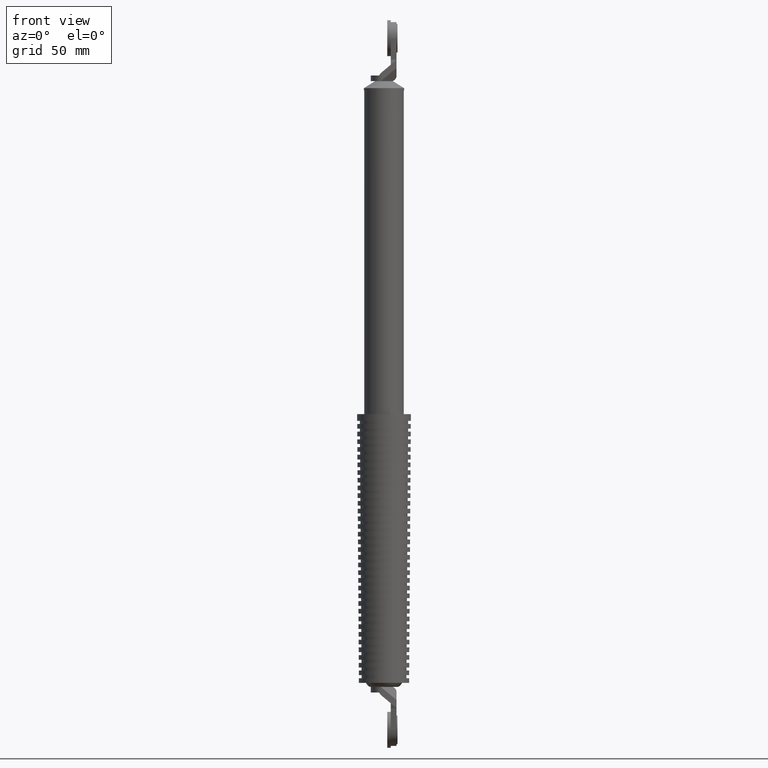
[diagram: clean part render]
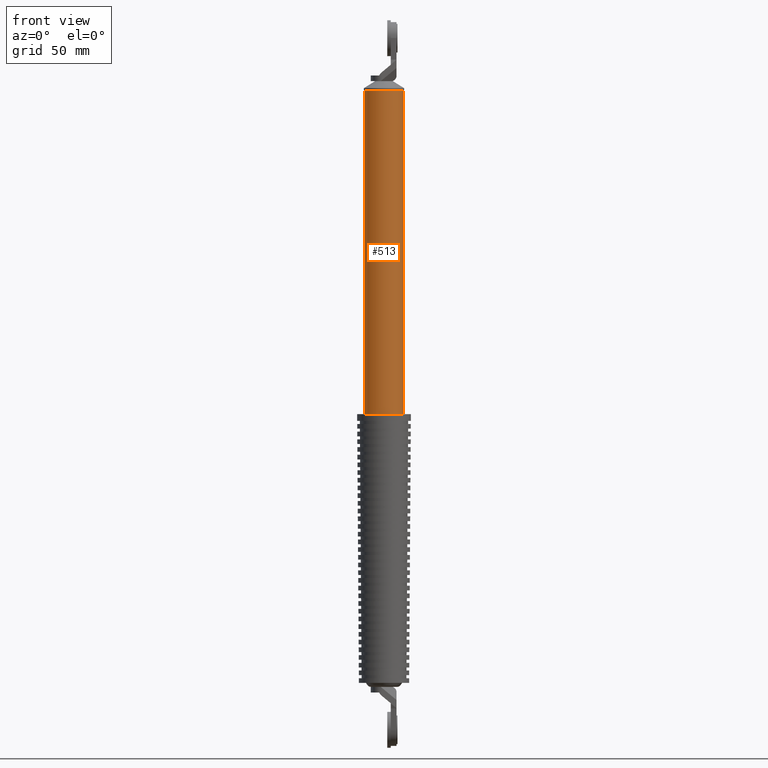
[diagram: same view with one face highlighted and labeled with its STEP entity id]
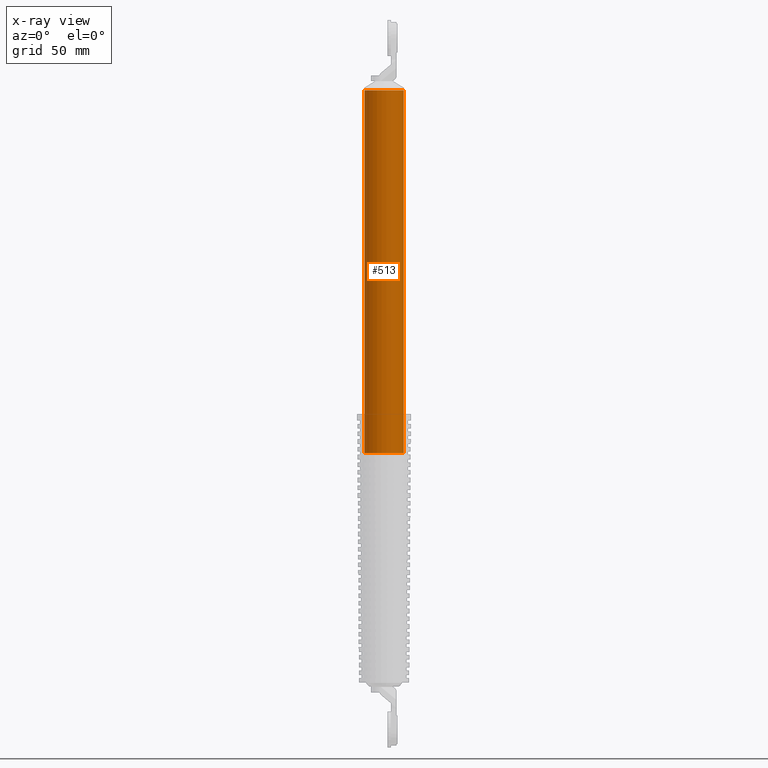
[diagram: x-ray of the same camera — body ghosted, the highlighted face saturated]
A machine part, front view. The second image highlights one B-rep face of the part: STEP entity #513.
The next image is the same camera in x-ray: the body ghosted, the highlighted face saturated — about 0% of this face is hidden behind the body in this view.
In plain terms, the highlighted cylindrical surface (edge-blend (fillet) strip) has radius 11 mm, axis along (0, 0, 1).
Its self-contained STEP definition (entity closure, byte-faithful):
#513=ADVANCED_FACE('',(#3355),#3354,.T.);
#3354=CYLINDRICAL_SURFACE('',#6181,1.10000000000E+001);
#3355=FACE_OUTER_BOUND('',#6182,.T.);
#6178=CARTESIAN_POINT('',(0.00000000000E+000,0.00000000000E+000,0.00000000000E+000));
#6179=DIRECTION('',(-0.00000000000E+000,-0.00000000000E+000,1.00000000000E+000));
#6180=DIRECTION('',(1.00000000000E+000,0.00000000000E+000,0.00000000000E+000));
#6181=AXIS2_PLACEMENT_3D('',#6178,#6179,#6180);
#6182=EDGE_LOOP('',(#7629,#7630,#7631,#7632));
#7629=ORIENTED_EDGE('',*,*,#8387,.F.);
#7630=ORIENTED_EDGE('',*,*,#8384,.T.);
#7631=ORIENTED_EDGE('',*,*,#8349,.T.);
#7632=ORIENTED_EDGE('',*,*,#8386,.F.);
#8349=EDGE_CURVE('',#12011,#12012,#12013,.T.);
#8384=EDGE_CURVE('',#12240,#12011,#12241,.T.);
#8386=EDGE_CURVE('',#12247,#12012,#12254,.T.);
#8387=EDGE_CURVE('',#12240,#12247,#12260,.T.);
#12011=VERTEX_POINT('',#14960);
#12012=VERTEX_POINT('',#14961);
#12013=CIRCLE('',#14965,1.10000000000E+001);
#12240=VERTEX_POINT('',#15101);
#12241=(BOUNDED_CURVE() B_SPLINE_CURVE(1,(#15102,#15103),.UNSPECIFIED.,.F.,.F.) B_SPLINE_CURVE_WITH_KNOTS((2,2),(4.49640316890E-002,9.55035968134E-001),.UNSPECIFIED.) CURVE() GEOMETRIC_REPRESENTATION_ITEM() RATIONAL_B_SPLINE_CURVE((1.00000000000E+000,1.00000000000E+000)) REPRESENTATION_ITEM('') );
#12247=VERTEX_POINT('',#15104);
#12254=(BOUNDED_CURVE() B_SPLINE_CURVE(1,(#15109,#15110),.UNSPECIFIED.,.F.,.F.) B_SPLINE_CURVE_WITH_KNOTS((2,2),(4.49640318096E-002,9.55035968190E-001),.UNSPECIFIED.) CURVE() GEOMETRIC_REPRESENTATION_ITEM() RATIONAL_B_SPLINE_CURVE((7.50000000000E-001,7.50000000000E-001)) REPRESENTATION_ITEM('') );
#12260=CIRCLE('',#15114,1.10000000000E+001);
#14960=CARTESIAN_POINT('',(1.10000000000E+001,5.92118946467E-016,2.23899985000E+002));
#14961=CARTESIAN_POINT('',(-1.10000000000E+001,0.00000000000E+000,2.23899985000E+002));
#14962=CARTESIAN_POINT('',(0.00000000000E+000,0.00000000000E+000,2.23899985000E+002));
#14963=DIRECTION('',(-0.00000000000E+000,0.00000000000E+000,-1.00000000000E+000));
#14964=DIRECTION('',(-1.00000000000E+000,-1.22460635382E-016,0.00000000000E+000));
#14965=AXIS2_PLACEMENT_3D('',#14962,#14963,#14964);
#15101=CARTESIAN_POINT('',(1.10000000000E+001,5.92118946467E-016,2.15000000000E+001));
#15102=CARTESIAN_POINT('',(1.10000000000E+001,0.00000000000E+000,2.14999999732E+001));
#15103=CARTESIAN_POINT('',(1.10000000000E+001,0.00000000000E+000,2.23899984987E+002));
#15104=CARTESIAN_POINT('',(-1.10000000000E+001,0.00000000000E+000,2.15000000000E+001));
#15109=CARTESIAN_POINT('',(-1.10000000000E+001,0.00000000000E+000,2.15000000000E+001));
#15110=CARTESIAN_POINT('',(-1.10000000000E+001,0.00000000000E+000,2.23899985000E+002));
#15111=CARTESIAN_POINT('',(0.00000000000E+000,0.00000000000E+000,2.15000000000E+001));
#15112=DIRECTION('',(-0.00000000000E+000,0.00000000000E+000,-1.00000000000E+000));
#15113=DIRECTION('',(-1.00000000000E+000,-1.22460635382E-016,0.00000000000E+000));
#15114=AXIS2_PLACEMENT_3D('',#15111,#15112,#15113);